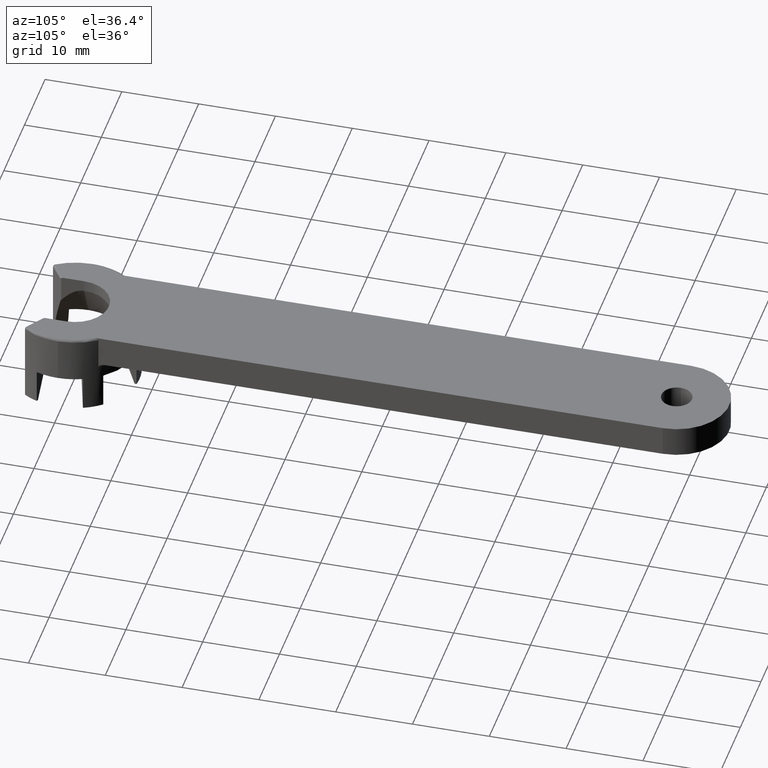
[diagram: clean part render]
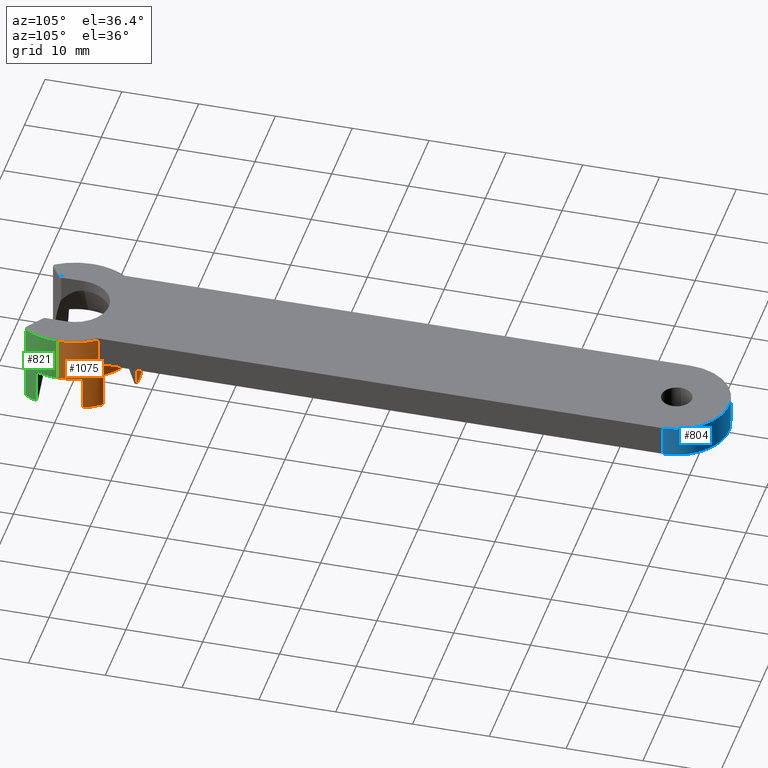
[diagram: same view with three faces highlighted in distinct colors, each labeled with its STEP entity id]
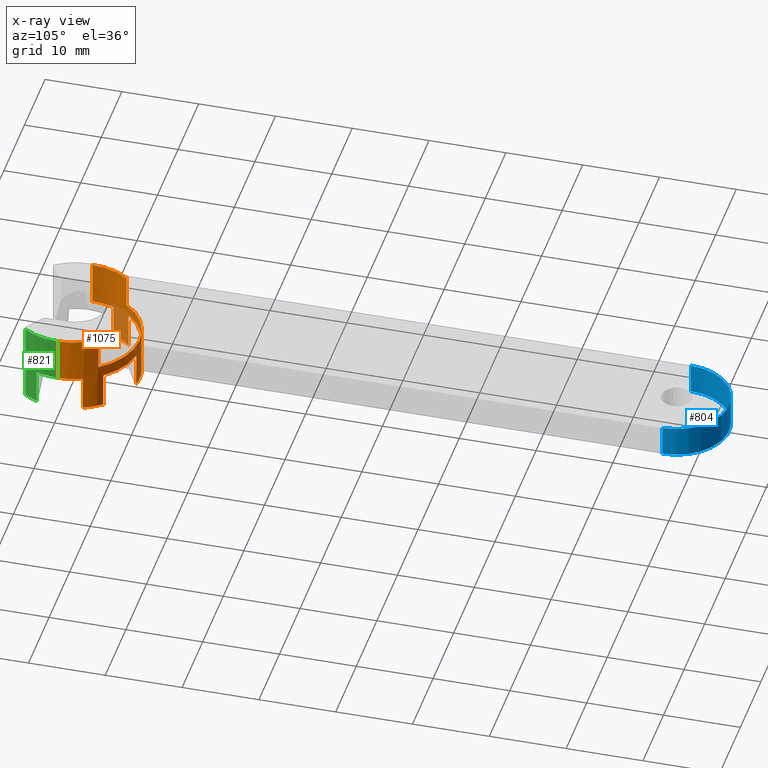
[diagram: x-ray of the same camera — body ghosted, the three highlighted faces saturated]
A machine part, auxiliary view with three faces highlighted in distinct colors.
The next image is the same camera in x-ray (body ghosted, the three faces saturated) — at least one of them is partly hidden behind the body in this view.
Their STEP definitions:

[orange] entity #1075 — the highlighted cylindrical surface (partial cylindrical patch) has radius 8.4 mm, axis along (0, -0, 1).
#40 = CARTESIAN_POINT ( 'NONE',  ( 6.440411710911185100, 5.392689217260539200, -5.400000000000000400 ) ) ;
#44 = VECTOR ( 'NONE', #1659, 1000.000000000000000 ) ;
#64 = DIRECTION ( 'NONE',  ( 0.0000000000000000000, -0.0000000000000000000, 1.000000000000000000 ) ) ;
#65 = CARTESIAN_POINT ( 'NONE',  ( 6.850000001173179400, 4.861841213576216300, -4.500000000667159700 ) ) ;
#78 = CARTESIAN_POINT ( 'NONE',  ( -8.400000000000000400, 1.028703311283776800E-015, -5.999999995799997000 ) ) ;
#114 = CARTESIAN_POINT ( 'NONE',  ( -6.600272663759588100, 5.195806074520867000, -5.400000000000000400 ) ) ;
#129 = DIRECTION ( 'NONE',  ( -0.0000000000000000000, 0.0000000000000000000, -1.000000000000000000 ) ) ;
#130 = DIRECTION ( 'NONE',  ( 1.000000000000000000, 0.0000000000000000000, 0.0000000000000000000 ) ) ;
#145 = DIRECTION ( 'NONE',  ( -0.0000000000000000000, 0.0000000000000000000, -1.000000000000000000 ) ) ;
#158 = VECTOR ( 'NONE', #1770, 1000.000000000000000 ) ;
#161 = DIRECTION ( 'NONE',  ( 1.000000000000000000, 0.0000000000000000000, 1.936075308009829200E-016 ) ) ;
#163 = AXIS2_PLACEMENT_3D ( 'NONE', #706, #1724, #130 ) ;
#167 = EDGE_CURVE ( 'NONE', #946, #1569, #557, .T. ) ;
#172 = DIRECTION ( 'NONE',  ( 1.000000000000000000, 0.0000000000000000000, 4.130293990420968900E-016 ) ) ;
#173 = CIRCLE ( 'NONE', #199, 8.400000000000000400 ) ;
#189 = CARTESIAN_POINT ( 'NONE',  ( 7.799836387444442700, 3.118100756726383400, -5.400000000000000400 ) ) ;
#190 = ORIENTED_EDGE ( 'NONE', *, *, #1791, .F. ) ;
#194 = AXIS2_PLACEMENT_3D ( 'NONE', #1266, #967, #1127 ) ;
#195 = EDGE_CURVE ( 'NONE', #870, #1136, #1670, .T. ) ;
#199 = AXIS2_PLACEMENT_3D ( 'NONE', #217, #145, #1708 ) ;
#208 = CARTESIAN_POINT ( 'NONE',  ( -8.400000000192935800, -1.722868799528782000E-009, -0.2999999999037157300 ) ) ;
#217 = CARTESIAN_POINT ( 'NONE',  ( 0.0000000000000000000, 0.0000000000000000000, -5.999999995799997000 ) ) ;
#222 = ORIENTED_EDGE ( 'NONE', *, *, #1257, .F. ) ;
#228 = VERTEX_POINT ( 'NONE', #235 ) ;
#235 = CARTESIAN_POINT ( 'NONE',  ( 1.199563726701994500, 8.313906835271900800, -10.49999999999999500 ) ) ;
#237 = AXIS2_PLACEMENT_3D ( 'NONE', #285, #302, #1303 ) ;
#238 = CARTESIAN_POINT ( 'NONE',  ( -1.449999999990434500, 8.273904761358313200, -5.999999997899998900 ) ) ;
#248 = CIRCLE ( 'NONE', #721, 8.400000000000000400 ) ;
#252 = CARTESIAN_POINT ( 'NONE',  ( 0.0000000000000000000, 0.0000000000000000000, -10.49999999999999500 ) ) ;
#272 = EDGE_CURVE ( 'NONE', #518, #946, #1308, .T. ) ;
#278 = VERTEX_POINT ( 'NONE', #750 ) ;
#285 = CARTESIAN_POINT ( 'NONE',  ( 0.0000000000000000000, 0.0000000000000000000, -5.999999995799997000 ) ) ;
#293 = CIRCLE ( 'NONE', #762, 8.400000000000000400 ) ;
#302 = DIRECTION ( 'NONE',  ( -0.0000000000000000000, 0.0000000000000000000, -1.000000000000000000 ) ) ;
#314 = CARTESIAN_POINT ( 'NONE',  ( 7.799836387319384600, 3.118100757039212300, -5.999999997899999800 ) ) ;
#325 = DIRECTION ( 'NONE',  ( 1.000000000000000000, 0.0000000000000000000, 0.0000000000000000000 ) ) ;
#336 = LINE ( 'NONE', #189, #1058 ) ;
#338 = CARTESIAN_POINT ( 'NONE',  ( 6.850000002346358300, 4.861841211707238500, -5.400000000000000400 ) ) ;
#343 = CARTESIAN_POINT ( 'NONE',  ( -1.449999999920230900, 8.273904761370616300, -10.49999999999999500 ) ) ;
#346 = EDGE_CURVE ( 'NONE', #1486, #940, #862, .T. ) ;
#363 = AXIS2_PLACEMENT_3D ( 'NONE', #1150, #544, #161 ) ;
#377 = DIRECTION ( 'NONE',  ( 1.000000000000000000, -2.664535259100375700E-015, 0.0000000000000000000 ) ) ;
#386 = CARTESIAN_POINT ( 'NONE',  ( 7.799836387194327300, 3.118100757352040700, -10.49999999999999500 ) ) ;
#396 = AXIS2_PLACEMENT_3D ( 'NONE', #867, #129, #1490 ) ;
#420 = DIRECTION ( 'NONE',  ( 0.0000000000000000000, 0.0000000000000000000, 1.000000000000000000 ) ) ;
#436 = DIRECTION ( 'NONE',  ( -0.0000000000000000000, -0.0000000000000000000, -1.000000000000000000 ) ) ;
#438 = VECTOR ( 'NONE', #836, 1000.000000000000000 ) ;
#464 = DIRECTION ( 'NONE',  ( -0.0000000000000000000, -0.0000000000000000000, -1.000000000000000000 ) ) ;
#466 = VECTOR ( 'NONE', #464, 1000.000000000000000 ) ;
#471 = ORIENTED_EDGE ( 'NONE', *, *, #167, .F. ) ;
#485 = CARTESIAN_POINT ( 'NONE',  ( -1.449999999779823600, 8.273904761395222400, -5.400000000000000400 ) ) ;
#489 = VECTOR ( 'NONE', #1274, 1000.000000000000000 ) ;
#514 = DIRECTION ( 'NONE',  ( -0.0000000000000000000, 0.0000000000000000000, -1.000000000000000000 ) ) ;
#516 = LINE ( 'NONE', #40, #158 ) ;
#518 = VERTEX_POINT ( 'NONE', #1433 ) ;
#530 = EDGE_CURVE ( 'NONE', #228, #920, #1741, .T. ) ;
#540 = CIRCLE ( 'NONE', #363, 8.400000000000000400 ) ;
#544 = DIRECTION ( 'NONE',  ( 0.0000000000000000000, 0.0000000000000000000, 1.000000000000000000 ) ) ;
#555 = CARTESIAN_POINT ( 'NONE',  ( 8.400000000000000400, 0.0000000000000000000, -10.50000000000000000 ) ) ;
#557 = CIRCLE ( 'NONE', #1685, 8.400000000000000400 ) ;
#564 = VERTEX_POINT ( 'NONE', #314 ) ;
#565 = CIRCLE ( 'NONE', #1546, 8.400000000000000400 ) ;
#620 = EDGE_CURVE ( 'NONE', #1462, #1240, #1643, .T. ) ;
#637 = VERTEX_POINT ( 'NONE', #208 ) ;
#646 = VERTEX_POINT ( 'NONE', #343 ) ;
#697 = VECTOR ( 'NONE', #436, 1000.000000000000000 ) ;
#702 = CARTESIAN_POINT ( 'NONE',  ( 0.0000000000000000000, 0.0000000000000000000, -4.500000001200002800 ) ) ;
#706 = CARTESIAN_POINT ( 'NONE',  ( 0.0000000000000000000, 0.0000000000000000000, -10.50000000000000000 ) ) ;
#721 = AXIS2_PLACEMENT_3D ( 'NONE', #1508, #1639, #1777 ) ;
#722 = CARTESIAN_POINT ( 'NONE',  ( 1.199563728472190700, 8.313906835016490900, -5.400000000000000400 ) ) ;
#723 = LINE ( 'NONE', #114, #1137 ) ;
#726 = EDGE_CURVE ( 'NONE', #1569, #1792, #1195, .T. ) ;
#742 = CARTESIAN_POINT ( 'NONE',  ( -7.890411711365974400, 2.881215546455818900, -5.999999997899998000 ) ) ;
#746 = ORIENTED_EDGE ( 'NONE', *, *, #530, .F. ) ;
#750 = CARTESIAN_POINT ( 'NONE',  ( 6.440411711445793100, 5.392689216622063200, -10.49999999999999500 ) ) ;
#762 = AXIS2_PLACEMENT_3D ( 'NONE', #828, #1158, #325 ) ;
#763 = ORIENTED_EDGE ( 'NONE', *, *, #1737, .F. ) ;
#785 = EDGE_CURVE ( 'NONE', #940, #1473, #293, .T. ) ;
#795 = CARTESIAN_POINT ( 'NONE',  ( -8.400000000000000400, 1.028703311283776800E-015, -10.50000000000000000 ) ) ;
#800 = CARTESIAN_POINT ( 'NONE',  ( -6.849999999478879600, 4.861841215747318800, -5.400000000000000400 ) ) ;
#828 = CARTESIAN_POINT ( 'NONE',  ( 0.0000000000000000000, 0.0000000000000000000, -10.49999999999999500 ) ) ;
#836 = DIRECTION ( 'NONE',  ( -0.0000000000000000000, -0.0000000000000000000, -1.000000000000000000 ) ) ;
#837 = ORIENTED_EDGE ( 'NONE', *, *, #1601, .F. ) ;
#843 = CARTESIAN_POINT ( 'NONE',  ( 1.199563727587093000, 8.313906835144196700, -5.999999997899998900 ) ) ;
#845 = ORIENTED_EDGE ( 'NONE', *, *, #272, .F. ) ;
#862 = LINE ( 'NONE', #1301, #438 ) ;
#865 = VECTOR ( 'NONE', #64, 1000.000000000000000 ) ;
#867 = CARTESIAN_POINT ( 'NONE',  ( 0.0000000000000000000, 0.0000000000000000000, -10.49999999999999500 ) ) ;
#870 = VERTEX_POINT ( 'NONE', #1304 ) ;
#875 = VERTEX_POINT ( 'NONE', #386 ) ;
#886 = VERTEX_POINT ( 'NONE', #1809 ) ;
#920 = VERTEX_POINT ( 'NONE', #843 ) ;
#940 = VERTEX_POINT ( 'NONE', #1518 ) ;
#946 = VERTEX_POINT ( 'NONE', #65 ) ;
#965 = ORIENTED_EDGE ( 'NONE', *, *, #620, .F. ) ;
#966 = CARTESIAN_POINT ( 'NONE',  ( 8.400000000000000400, 0.0000000000000000000, -0.3000000000000016500 ) ) ;
#967 = DIRECTION ( 'NONE',  ( -0.0000000000000000000, 0.0000000000000000000, -1.000000000000000000 ) ) ;
#978 = VECTOR ( 'NONE', #1591, 1000.000000000000000 ) ;
#1036 = EDGE_CURVE ( 'NONE', #1762, #1486, #173, .T. ) ;
#1037 = DIRECTION ( 'NONE',  ( 0.0000000000000000000, 0.0000000000000000000, 1.000000000000000000 ) ) ;
#1058 = VECTOR ( 'NONE', #420, 1000.000000000000000 ) ;
#1075 = ADVANCED_FACE ( 'NONE', ( #1233 ), #1726, .T. ) ;
#1088 = ORIENTED_EDGE ( 'NONE', *, *, #346, .F. ) ;
#1107 = LINE ( 'NONE', #485, #697 ) ;
#1127 = DIRECTION ( 'NONE',  ( 1.000000000000000000, -8.881784197001252300E-016, 0.0000000000000000000 ) ) ;
#1136 = VERTEX_POINT ( 'NONE', #238 ) ;
#1137 = VECTOR ( 'NONE', #1576, 1000.000000000000000 ) ;
#1150 = CARTESIAN_POINT ( 'NONE',  ( 0.0000000000000000000, 0.0000000000000000000, -0.3000000000000016500 ) ) ;
#1158 = DIRECTION ( 'NONE',  ( -0.0000000000000000000, 0.0000000000000000000, -1.000000000000000000 ) ) ;
#1195 = LINE ( 'NONE', #800, #44 ) ;
#1205 = EDGE_CURVE ( 'NONE', #646, #228, #1552, .T. ) ;
#1211 = CARTESIAN_POINT ( 'NONE',  ( 0.0000000000000000000, 0.0000000000000000000, -5.999999995799997000 ) ) ;
#1233 = FACE_OUTER_BOUND ( 'NONE', #1557, .T. ) ;
#1240 = VERTEX_POINT ( 'NONE', #966 ) ;
#1257 = EDGE_CURVE ( 'NONE', #1473, #870, #723, .T. ) ;
#1266 = CARTESIAN_POINT ( 'NONE',  ( 0.0000000000000000000, 0.0000000000000000000, -5.999999995799997000 ) ) ;
#1270 = LINE ( 'NONE', #795, #865 ) ;
#1274 = DIRECTION ( 'NONE',  ( 0.0000000000000000000, -0.0000000000000000000, 1.000000000000000000 ) ) ;
#1275 = ORIENTED_EDGE ( 'NONE', *, *, #1471, .F. ) ;
#1289 = DIRECTION ( 'NONE',  ( 1.000000000000000000, 3.552713678800500900E-015, 0.0000000000000000000 ) ) ;
#1301 = CARTESIAN_POINT ( 'NONE',  ( -7.890411711184758500, 2.881215546952092600, -5.399999999999999500 ) ) ;
#1303 = DIRECTION ( 'NONE',  ( 1.000000000000000000, -6.217248937900876600E-015, 0.0000000000000000000 ) ) ;
#1304 = CARTESIAN_POINT ( 'NONE',  ( -6.600272662350986900, 5.195806076310224100, -5.999999997899998900 ) ) ;
#1308 = LINE ( 'NONE', #338, #466 ) ;
#1312 = CIRCLE ( 'NONE', #237, 8.400000000000000400 ) ;
#1334 = CIRCLE ( 'NONE', #396, 8.400000000000000400 ) ;
#1340 = CARTESIAN_POINT ( 'NONE',  ( 8.400000000000000400, 0.0000000000000000000, -5.999999995799997000 ) ) ;
#1415 = ORIENTED_EDGE ( 'NONE', *, *, #1767, .T. ) ;
#1433 = CARTESIAN_POINT ( 'NONE',  ( 6.850000001173179400, 4.861841213318316000, -0.2999999997764299400 ) ) ;
#1439 = ORIENTED_EDGE ( 'NONE', *, *, #1036, .F. ) ;
#1450 = EDGE_CURVE ( 'NONE', #278, #875, #1334, .T. ) ;
#1462 = VERTEX_POINT ( 'NONE', #1340 ) ;
#1471 = EDGE_CURVE ( 'NONE', #1240, #518, #540, .T. ) ;
#1473 = VERTEX_POINT ( 'NONE', #1815 ) ;
#1476 = ORIENTED_EDGE ( 'NONE', *, *, #1450, .F. ) ;
#1486 = VERTEX_POINT ( 'NONE', #742 ) ;
#1490 = DIRECTION ( 'NONE',  ( 1.000000000000000000, -5.329070518200751400E-015, 0.0000000000000000000 ) ) ;
#1501 = ORIENTED_EDGE ( 'NONE', *, *, #1663, .F. ) ;
#1508 = CARTESIAN_POINT ( 'NONE',  ( 0.0000000000000000000, 0.0000000000000000000, -0.3000000000000016500 ) ) ;
#1518 = CARTESIAN_POINT ( 'NONE',  ( -7.890411711547191200, 2.881215545959545200, -10.49999999999999500 ) ) ;
#1534 = CARTESIAN_POINT ( 'NONE',  ( -6.849999999739441000, 4.861841215596255600, -4.500000000667159700 ) ) ;
#1546 = AXIS2_PLACEMENT_3D ( 'NONE', #1211, #1672, #377 ) ;
#1552 = CIRCLE ( 'NONE', #1681, 8.400000000000000400 ) ;
#1557 = EDGE_LOOP ( 'NONE', ( #1439, #1415, #1501, #1842, #471, #845, #1275, #965, #763, #837, #1476, #190, #1595, #746, #1686, #1805, #1796, #222, #1660, #1088 ) ) ;
#1569 = VERTEX_POINT ( 'NONE', #1534 ) ;
#1576 = DIRECTION ( 'NONE',  ( 0.0000000000000000000, 0.0000000000000000000, 1.000000000000000000 ) ) ;
#1581 = EDGE_CURVE ( 'NONE', #1136, #646, #1107, .T. ) ;
#1591 = DIRECTION ( 'NONE',  ( 0.0000000000000000000, 0.0000000000000000000, 1.000000000000000000 ) ) ;
#1595 = ORIENTED_EDGE ( 'NONE', *, *, #1760, .F. ) ;
#1601 = EDGE_CURVE ( 'NONE', #875, #564, #336, .T. ) ;
#1639 = DIRECTION ( 'NONE',  ( 0.0000000000000000000, 0.0000000000000000000, 1.000000000000000000 ) ) ;
#1643 = LINE ( 'NONE', #555, #489 ) ;
#1659 = DIRECTION ( 'NONE',  ( 0.0000000000000000000, 0.0000000000000000000, 1.000000000000000000 ) ) ;
#1660 = ORIENTED_EDGE ( 'NONE', *, *, #785, .F. ) ;
#1663 = EDGE_CURVE ( 'NONE', #1792, #637, #248, .T. ) ;
#1670 = CIRCLE ( 'NONE', #194, 8.400000000000000400 ) ;
#1672 = DIRECTION ( 'NONE',  ( -0.0000000000000000000, 0.0000000000000000000, -1.000000000000000000 ) ) ;
#1681 = AXIS2_PLACEMENT_3D ( 'NONE', #252, #514, #1289 ) ;
#1685 = AXIS2_PLACEMENT_3D ( 'NONE', #702, #1037, #172 ) ;
#1686 = ORIENTED_EDGE ( 'NONE', *, *, #1205, .F. ) ;
#1708 = DIRECTION ( 'NONE',  ( 1.000000000000000000, 0.0000000000000000000, 0.0000000000000000000 ) ) ;
#1713 = CARTESIAN_POINT ( 'NONE',  ( -6.849999999739439200, 4.861841215399237200, -0.2999999997764299400 ) ) ;
#1724 = DIRECTION ( 'NONE',  ( 0.0000000000000000000, -0.0000000000000000000, 1.000000000000000000 ) ) ;
#1726 = CYLINDRICAL_SURFACE ( 'NONE', #163, 8.400000000000000400 ) ;
#1737 = EDGE_CURVE ( 'NONE', #564, #1462, #1312, .T. ) ;
#1741 = LINE ( 'NONE', #722, #978 ) ;
#1760 = EDGE_CURVE ( 'NONE', #920, #886, #565, .T. ) ;
#1762 = VERTEX_POINT ( 'NONE', #78 ) ;
#1767 = EDGE_CURVE ( 'NONE', #1762, #637, #1270, .T. ) ;
#1770 = DIRECTION ( 'NONE',  ( -0.0000000000000000000, -0.0000000000000000000, -1.000000000000000000 ) ) ;
#1777 = DIRECTION ( 'NONE',  ( 1.000000000000000000, 0.0000000000000000000, 1.936075308009829200E-016 ) ) ;
#1791 = EDGE_CURVE ( 'NONE', #886, #278, #516, .T. ) ;
#1792 = VERTEX_POINT ( 'NONE', #1713 ) ;
#1796 = ORIENTED_EDGE ( 'NONE', *, *, #195, .F. ) ;
#1805 = ORIENTED_EDGE ( 'NONE', *, *, #1581, .F. ) ;
#1809 = CARTESIAN_POINT ( 'NONE',  ( 6.440411711713096600, 5.392689216302825300, -5.999999997899998900 ) ) ;
#1815 = CARTESIAN_POINT ( 'NONE',  ( -6.600272662820519700, 5.195806075713771400, -10.49999999999999500 ) ) ;
#1842 = ORIENTED_EDGE ( 'NONE', *, *, #726, .F. ) ;

[blue] entity #804 — the highlighted cylindrical surface (partial cylindrical patch) has radius 6.85 mm, axis along (0, -0, 1).
#6 = CIRCLE ( 'NONE', #1307, 6.850000000000000500 ) ;
#14 = CARTESIAN_POINT ( 'NONE',  ( -6.850000000000000500, 78.33195793219007900, -2.000000000000000000 ) ) ;
#36 = CARTESIAN_POINT ( 'NONE',  ( 0.0000000000000000000, 78.33195793500000500, -4.000000000000000000 ) ) ;
#76 = EDGE_CURVE ( 'NONE', #1267, #774, #6, .T. ) ;
#297 = CARTESIAN_POINT ( 'NONE',  ( 6.849999999999999600, 78.33195793500000500, -4.000000000677499800 ) ) ;
#316 = ORIENTED_EDGE ( 'NONE', *, *, #76, .F. ) ;
#323 = AXIS2_PLACEMENT_3D ( 'NONE', #1413, #740, #673 ) ;
#353 = ORIENTED_EDGE ( 'NONE', *, *, #1816, .F. ) ;
#473 = LINE ( 'NONE', #1778, #1590 ) ;
#553 = CYLINDRICAL_SURFACE ( 'NONE', #323, 6.850000000000000500 ) ;
#653 = EDGE_CURVE ( 'NONE', #856, #851, #884, .T. ) ;
#673 = DIRECTION ( 'NONE',  ( 1.000000000000000000, 0.0000000000000000000, 0.0000000000000000000 ) ) ;
#674 = AXIS2_PLACEMENT_3D ( 'NONE', #803, #1254, #1602 ) ;
#740 = DIRECTION ( 'NONE',  ( 0.0000000000000000000, -0.0000000000000000000, 1.000000000000000000 ) ) ;
#774 = VERTEX_POINT ( 'NONE', #297 ) ;
#803 = CARTESIAN_POINT ( 'NONE',  ( 0.0000000000000000000, 78.33195793500000500, 0.0000000000000000000 ) ) ;
#804 = ADVANCED_FACE ( 'NONE', ( #1435 ), #553, .T. ) ;
#830 = CARTESIAN_POINT ( 'NONE',  ( -6.849999999999999600, 78.33195793359504900, -4.000000000677499800 ) ) ;
#851 = VERTEX_POINT ( 'NONE', #872 ) ;
#856 = VERTEX_POINT ( 'NONE', #1440 ) ;
#872 = CARTESIAN_POINT ( 'NONE',  ( 6.850000000122799200, 78.33195793500000500, 0.0000000000000000000 ) ) ;
#884 = CIRCLE ( 'NONE', #674, 6.850000000000000500 ) ;
#1168 = ORIENTED_EDGE ( 'NONE', *, *, #653, .T. ) ;
#1200 = EDGE_LOOP ( 'NONE', ( #353, #316, #1829, #1168 ) ) ;
#1254 = DIRECTION ( 'NONE',  ( -0.0000000000000000000, 0.0000000000000000000, -1.000000000000000000 ) ) ;
#1267 = VERTEX_POINT ( 'NONE', #830 ) ;
#1293 = DIRECTION ( 'NONE',  ( 1.000000000000000000, 0.0000000000000000000, 0.0000000000000000000 ) ) ;
#1307 = AXIS2_PLACEMENT_3D ( 'NONE', #36, #1612, #1293 ) ;
#1371 = DIRECTION ( 'NONE',  ( 0.0000000000000000000, 0.0000000000000000000, 1.000000000000000000 ) ) ;
#1373 = LINE ( 'NONE', #14, #1701 ) ;
#1413 = CARTESIAN_POINT ( 'NONE',  ( 0.0000000000000000000, 78.33195793500000500, -4.000000000000000000 ) ) ;
#1423 = EDGE_CURVE ( 'NONE', #856, #1267, #1373, .T. ) ;
#1435 = FACE_OUTER_BOUND ( 'NONE', #1200, .T. ) ;
#1440 = CARTESIAN_POINT ( 'NONE',  ( -6.850000000122798300, 78.33195793359504900, 0.0000000000000000000 ) ) ;
#1590 = VECTOR ( 'NONE', #1371, 1000.000000000000000 ) ;
#1602 = DIRECTION ( 'NONE',  ( 1.000000000000000000, 0.0000000000000000000, 0.0000000000000000000 ) ) ;
#1612 = DIRECTION ( 'NONE',  ( -0.0000000000000000000, 0.0000000000000000000, -1.000000000000000000 ) ) ;
#1662 = DIRECTION ( 'NONE',  ( -0.0000000000000000000, -0.0000000000000000000, -1.000000000000000000 ) ) ;
#1701 = VECTOR ( 'NONE', #1662, 1000.000000000000000 ) ;
#1778 = CARTESIAN_POINT ( 'NONE',  ( 6.850000000000000500, 78.33195793500000500, -2.263500000000000100 ) ) ;
#1816 = EDGE_CURVE ( 'NONE', #774, #851, #473, .T. ) ;
#1829 = ORIENTED_EDGE ( 'NONE', *, *, #1423, .F. ) ;

[green] entity #821 — the highlighted cylindrical surface (partial cylindrical patch) has radius 8.4 mm, axis along (0, -0, 1).
#26 = LINE ( 'NONE', #1239, #1499 ) ;
#83 = DIRECTION ( 'NONE',  ( 0.0000000000000000000, 0.0000000000000000000, 1.000000000000000000 ) ) ;
#97 = VERTEX_POINT ( 'NONE', #1536 ) ;
#147 = EDGE_CURVE ( 'NONE', #1392, #1240, #1761, .T. ) ;
#175 = ORIENTED_EDGE ( 'NONE', *, *, #147, .F. ) ;
#193 = DIRECTION ( 'NONE',  ( 1.000000000000000000, 0.0000000000000000000, 1.936075308009829200E-016 ) ) ;
#230 = EDGE_CURVE ( 'NONE', #1781, #1605, #1264, .T. ) ;
#279 = AXIS2_PLACEMENT_3D ( 'NONE', #1627, #759, #912 ) ;
#309 = VECTOR ( 'NONE', #1529, 1000.000000000000000 ) ;
#337 = AXIS2_PLACEMENT_3D ( 'NONE', #858, #1093, #1337 ) ;
#366 = CARTESIAN_POINT ( 'NONE',  ( 7.054602160783251600, -4.559889072434105900, -0.3000000013075331800 ) ) ;
#400 = EDGE_CURVE ( 'NONE', #1605, #1392, #26, .T. ) ;
#424 = ORIENTED_EDGE ( 'NONE', *, *, #620, .T. ) ;
#467 = EDGE_CURVE ( 'NONE', #97, #1781, #1460, .T. ) ;
#489 = VECTOR ( 'NONE', #1274, 1000.000000000000000 ) ;
#555 = CARTESIAN_POINT ( 'NONE',  ( 8.400000000000000400, 0.0000000000000000000, -10.50000000000000000 ) ) ;
#620 = EDGE_CURVE ( 'NONE', #1462, #1240, #1643, .T. ) ;
#650 = CIRCLE ( 'NONE', #279, 8.400000000000000400 ) ;
#749 = AXIS2_PLACEMENT_3D ( 'NONE', #957, #757, #193 ) ;
#757 = DIRECTION ( 'NONE',  ( 0.0000000000000000000, 0.0000000000000000000, 1.000000000000000000 ) ) ;
#759 = DIRECTION ( 'NONE',  ( -0.0000000000000000000, 0.0000000000000000000, -1.000000000000000000 ) ) ;
#821 = ADVANCED_FACE ( 'NONE', ( #956 ), #1306, .T. ) ;
#858 = CARTESIAN_POINT ( 'NONE',  ( 0.0000000000000000000, 0.0000000000000000000, -10.50000000000000000 ) ) ;
#912 = DIRECTION ( 'NONE',  ( 1.000000000000000000, 0.0000000000000000000, 0.0000000000000000000 ) ) ;
#956 = FACE_OUTER_BOUND ( 'NONE', #1593, .T. ) ;
#957 = CARTESIAN_POINT ( 'NONE',  ( 0.0000000000000000000, 0.0000000000000000000, -0.3000000000000016500 ) ) ;
#966 = CARTESIAN_POINT ( 'NONE',  ( 8.400000000000000400, 0.0000000000000000000, -0.3000000000000016500 ) ) ;
#1018 = AXIS2_PLACEMENT_3D ( 'NONE', #1208, #1806, #1488 ) ;
#1093 = DIRECTION ( 'NONE',  ( 0.0000000000000000000, -0.0000000000000000000, 1.000000000000000000 ) ) ;
#1208 = CARTESIAN_POINT ( 'NONE',  ( 0.0000000000000000000, 0.0000000000000000000, -10.49999999999999500 ) ) ;
#1230 = ORIENTED_EDGE ( 'NONE', *, *, #1632, .F. ) ;
#1239 = CARTESIAN_POINT ( 'NONE',  ( 7.054602161335842500, -4.559889071597650600, -5.400000000000000400 ) ) ;
#1240 = VERTEX_POINT ( 'NONE', #966 ) ;
#1264 = CIRCLE ( 'NONE', #1018, 8.400000000000000400 ) ;
#1274 = DIRECTION ( 'NONE',  ( 0.0000000000000000000, -0.0000000000000000000, 1.000000000000000000 ) ) ;
#1306 = CYLINDRICAL_SURFACE ( 'NONE', #337, 8.400000000000000400 ) ;
#1337 = DIRECTION ( 'NONE',  ( 1.000000000000000000, 0.0000000000000000000, 0.0000000000000000000 ) ) ;
#1340 = CARTESIAN_POINT ( 'NONE',  ( 8.400000000000000400, 0.0000000000000000000, -5.999999995799997000 ) ) ;
#1382 = CARTESIAN_POINT ( 'NONE',  ( 7.890411712366651300, -2.881215543715394600, -5.400000000000000400 ) ) ;
#1392 = VERTEX_POINT ( 'NONE', #366 ) ;
#1460 = LINE ( 'NONE', #1382, #309 ) ;
#1462 = VERTEX_POINT ( 'NONE', #1340 ) ;
#1465 = CARTESIAN_POINT ( 'NONE',  ( 7.054602160798971500, -4.559889072428244800, -10.49999999999999500 ) ) ;
#1479 = CARTESIAN_POINT ( 'NONE',  ( 7.890411712138136300, -2.881215544341196600, -10.49999999999999500 ) ) ;
#1488 = DIRECTION ( 'NONE',  ( 1.000000000000000000, 0.0000000000000000000, 0.0000000000000000000 ) ) ;
#1499 = VECTOR ( 'NONE', #83, 1000.000000000000000 ) ;
#1529 = DIRECTION ( 'NONE',  ( -0.0000000000000000000, -0.0000000000000000000, -1.000000000000000000 ) ) ;
#1536 = CARTESIAN_POINT ( 'NONE',  ( 7.890411712252394200, -2.881215544028295800, -5.999999997899998000 ) ) ;
#1593 = EDGE_LOOP ( 'NONE', ( #1230, #424, #175, #1804, #1704, #1783 ) ) ;
#1605 = VERTEX_POINT ( 'NONE', #1465 ) ;
#1627 = CARTESIAN_POINT ( 'NONE',  ( 0.0000000000000000000, 0.0000000000000000000, -5.999999995799997000 ) ) ;
#1632 = EDGE_CURVE ( 'NONE', #1462, #97, #650, .T. ) ;
#1643 = LINE ( 'NONE', #555, #489 ) ;
#1704 = ORIENTED_EDGE ( 'NONE', *, *, #230, .F. ) ;
#1761 = CIRCLE ( 'NONE', #749, 8.400000000000000400 ) ;
#1781 = VERTEX_POINT ( 'NONE', #1479 ) ;
#1783 = ORIENTED_EDGE ( 'NONE', *, *, #467, .F. ) ;
#1804 = ORIENTED_EDGE ( 'NONE', *, *, #400, .F. ) ;
#1806 = DIRECTION ( 'NONE',  ( -0.0000000000000000000, 0.0000000000000000000, -1.000000000000000000 ) ) ;